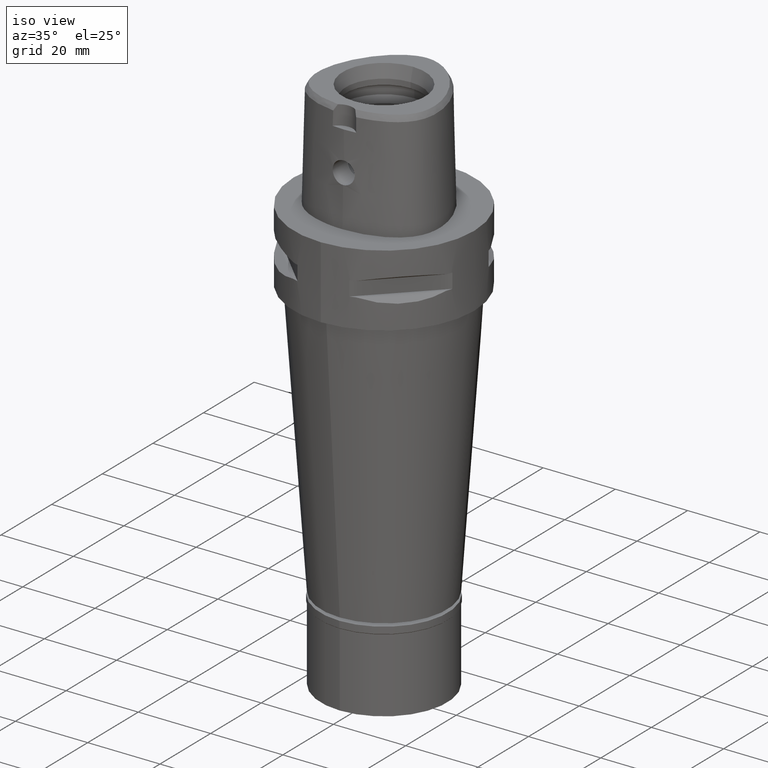
[diagram: clean part render]
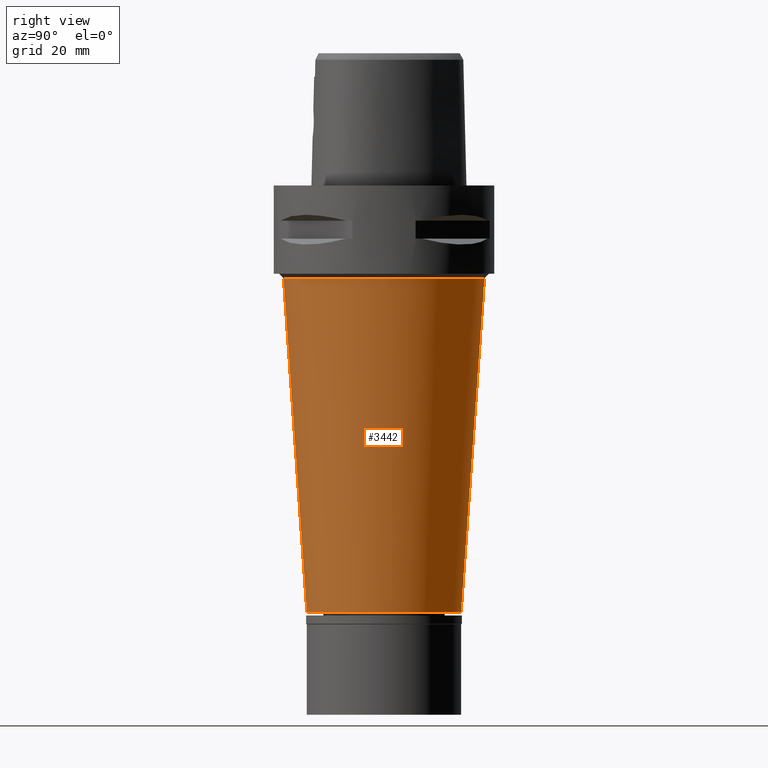
[diagram: tour spotlight — one face highlighted and labeled with its STEP entity id]
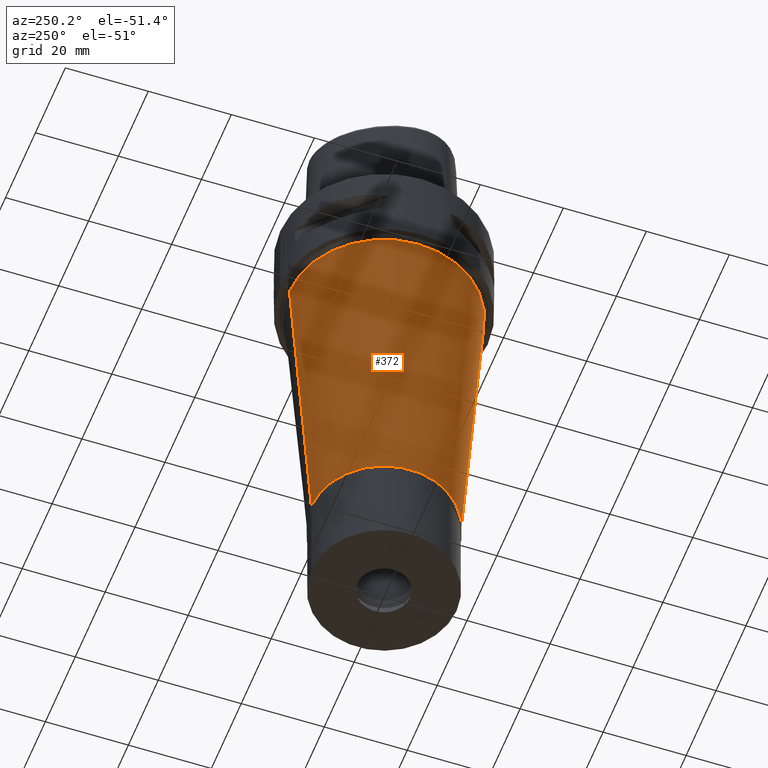
[diagram: tour spotlight — one face highlighted and labeled with its STEP entity id]
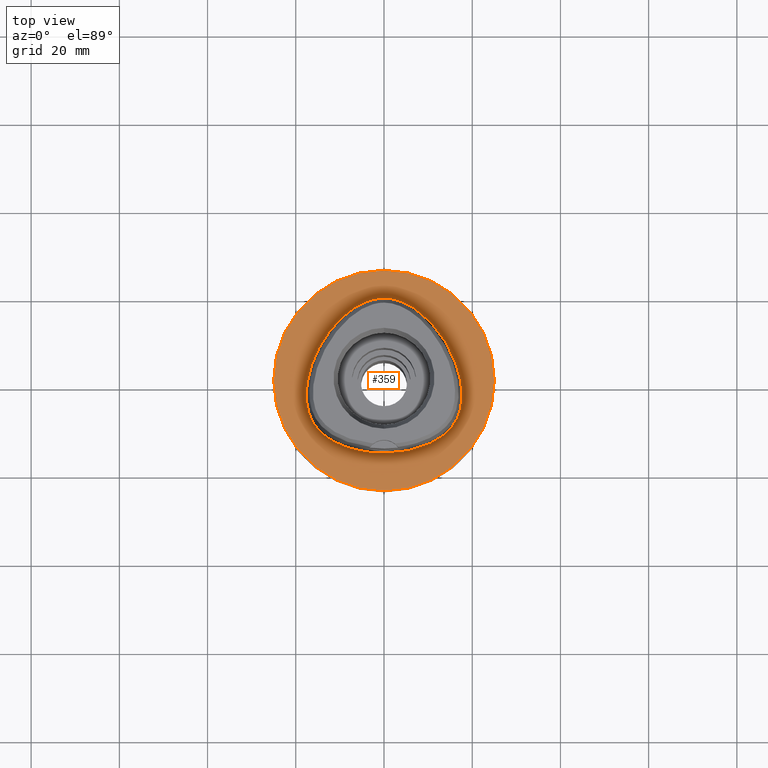
[diagram: tour spotlight — one face highlighted and labeled with its STEP entity id]
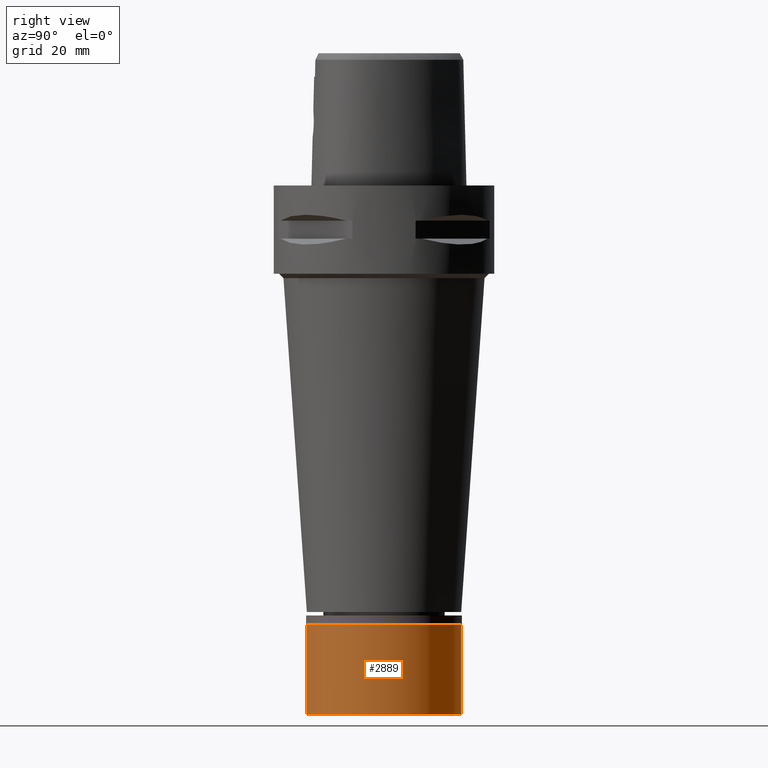
[diagram: tour spotlight — one face highlighted and labeled with its STEP entity id]
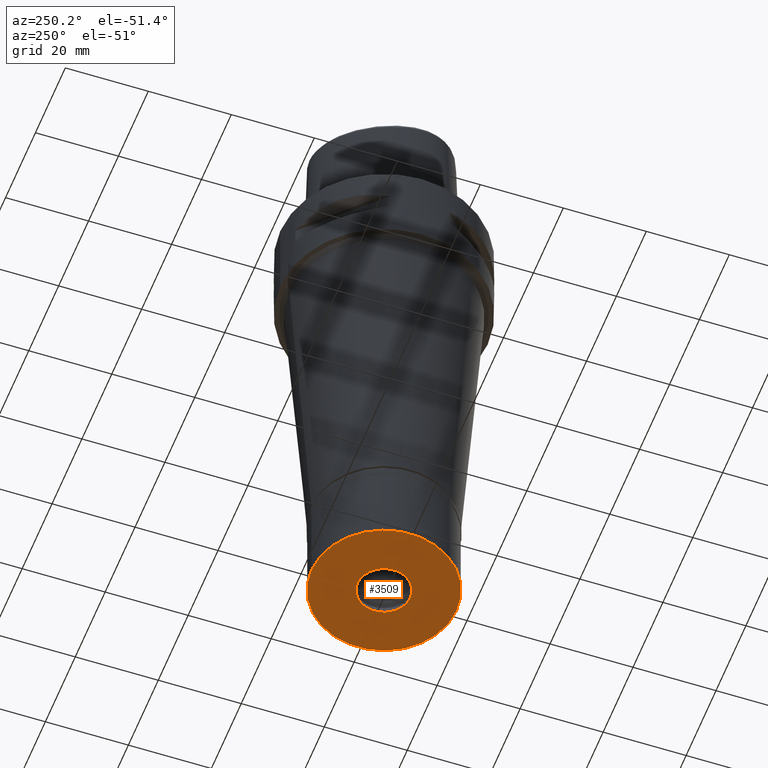
[diagram: tour spotlight — one face highlighted and labeled with its STEP entity id]
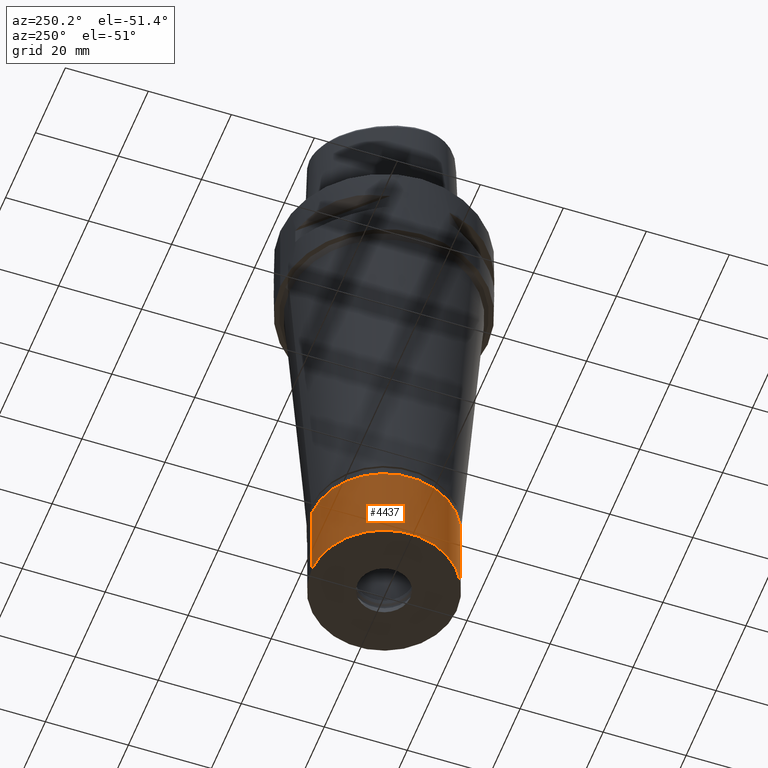
[diagram: tour spotlight — one face highlighted and labeled with its STEP entity id]
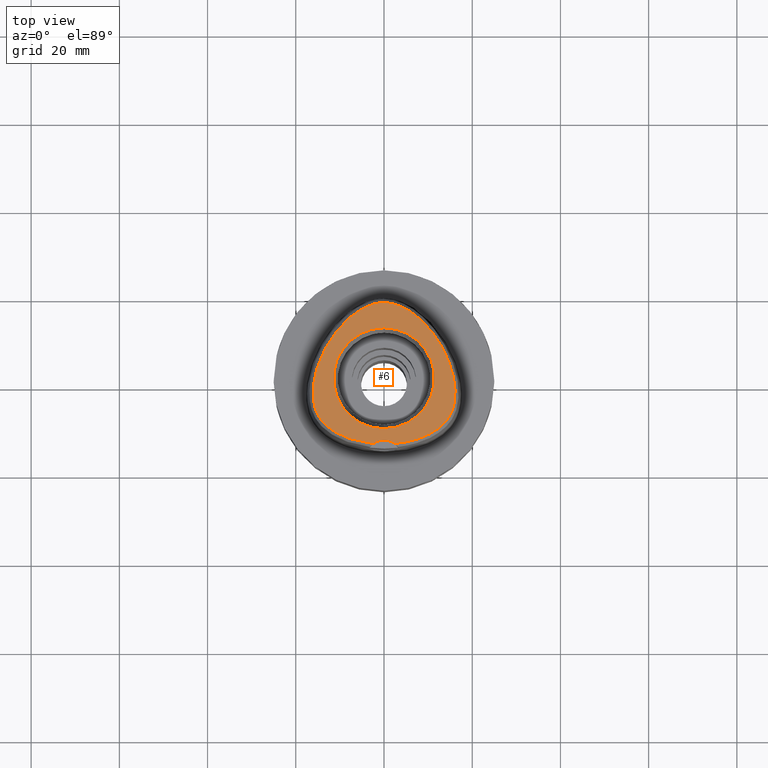
[diagram: tour spotlight — one face highlighted and labeled with its STEP entity id]
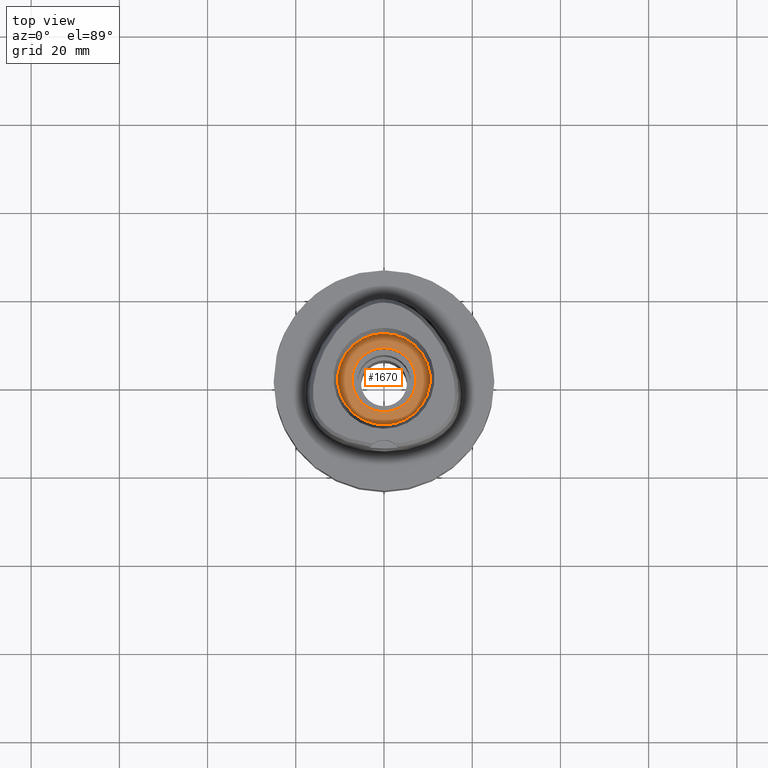
[diagram: tour spotlight — one face highlighted and labeled with its STEP entity id]
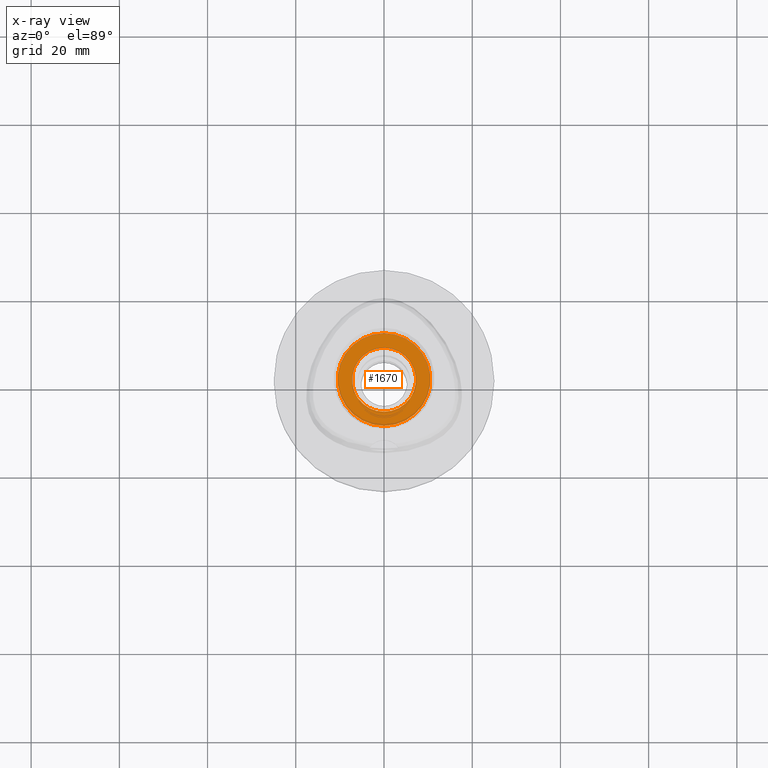
[diagram: x-ray of the same camera — body ghosted, this tour face saturated]
A machine part: a face-by-face anatomy tour. The part has 100 B-rep faces; the first image is the clean iso view, then the 8 largest visible faces are spotlighted one at a time (largest first), each with its STEP entity span.

Face 1 — right view, entity #3442. In plain terms, the highlighted conical surface has half-angle 4 deg.
Definition (entity closure, byte-faithful):
#53 = VERTEX_POINT ( 'NONE', #3739 ) ;
#273 = DIRECTION ( 'NONE',  ( 0.0000000000000000000, 1.000000000000000000, 0.0000000000000000000 ) ) ;
#334 = VECTOR ( 'NONE', #3216, 999.9999999999998863 ) ;
#556 = DIRECTION ( 'NONE',  ( 0.0000000000000000000, -1.000000000000000000, 0.0000000000000000000 ) ) ;
#621 = ORIENTED_EDGE ( 'NONE', *, *, #3413, .T. ) ;
#960 = CARTESIAN_POINT ( 'NONE',  ( 0.0000000000000000000, 17.50000000000000000, -96.69999999999998863 ) ) ;
#1284 = CARTESIAN_POINT ( 'NONE',  ( 0.0000000000000000000, 0.0000000000000000000, -21.00000000000000000 ) ) ;
#1690 = ORIENTED_EDGE ( 'NONE', *, *, #2455, .F. ) ;
#1957 = AXIS2_PLACEMENT_3D ( 'NONE', #1284, #2811, #556 ) ;
#2083 = AXIS2_PLACEMENT_3D ( 'NONE', #4408, #2926, #2132 ) ;
#2125 = CARTESIAN_POINT ( 'NONE',  ( 0.0000000000000000000, 22.79345966412000024, -21.00000000000000000 ) ) ;
#2132 = DIRECTION ( 'NONE',  ( 0.0000000000000000000, -1.000000000000000000, 0.0000000000000000000 ) ) ;
#2455 = EDGE_CURVE ( 'NONE', #2828, #3802, #4832, .T. ) ;
#2524 = DIRECTION ( 'NONE',  ( 0.0000000000000000000, 0.0000000000000000000, 1.000000000000000000 ) ) ;
#2709 = CONICAL_SURFACE ( 'NONE', #3588, 20.14672983206000367, 0.06981317007975955391 ) ;
#2738 = EDGE_CURVE ( 'NONE', #2828, #53, #3504, .T. ) ;
#2811 = DIRECTION ( 'NONE',  ( 0.0000000000000000000, 0.0000000000000000000, 1.000000000000000000 ) ) ;
#2825 = CARTESIAN_POINT ( 'NONE',  ( 0.0000000000000000000, 0.0000000000000000000, -58.85000000000000142 ) ) ;
#2828 = VERTEX_POINT ( 'NONE', #3537 ) ;
#2926 = DIRECTION ( 'NONE',  ( 0.0000000000000000000, 0.0000000000000000000, 1.000000000000000000 ) ) ;
#2964 = CIRCLE ( 'NONE', #2083, 17.50000000000000000 ) ;
#3216 = DIRECTION ( 'NONE',  ( 0.0000000000000000000, -0.06975647374410180734, -0.9975640502598259740 ) ) ;
#3371 = EDGE_LOOP ( 'NONE', ( #1690, #3714, #621, #3654 ) ) ;
#3413 = EDGE_CURVE ( 'NONE', #53, #3476, #2964, .T. ) ;
#3442 = ADVANCED_FACE ( 'NONE', ( #4855 ), #2709, .T. ) ;
#3476 = VERTEX_POINT ( 'NONE', #960 ) ;
#3504 = LINE ( 'NONE', #3528, #3717 ) ;
#3528 = CARTESIAN_POINT ( 'NONE',  ( 0.0000000000000000000, -22.79345966412000024, -21.00000000000000000 ) ) ;
#3537 = CARTESIAN_POINT ( 'NONE',  ( 0.0000000000000000000, -22.79345966412000024, -21.00000000000000000 ) ) ;
#3588 = AXIS2_PLACEMENT_3D ( 'NONE', #2825, #2524, #273 ) ;
#3654 = ORIENTED_EDGE ( 'NONE', *, *, #4816, .F. ) ;
#3714 = ORIENTED_EDGE ( 'NONE', *, *, #2738, .T. ) ;
#3717 = VECTOR ( 'NONE', #4285, 999.9999999999998863 ) ;
#3739 = CARTESIAN_POINT ( 'NONE',  ( 0.0000000000000000000, -17.50000000000000000, -96.69999999999998863 ) ) ;
#3802 = VERTEX_POINT ( 'NONE', #2125 ) ;
#3962 = LINE ( 'NONE', #4036, #334 ) ;
#4036 = CARTESIAN_POINT ( 'NONE',  ( 0.0000000000000000000, 22.79345966412000024, -21.00000000000000000 ) ) ;
#4285 = DIRECTION ( 'NONE',  ( 0.0000000000000000000, 0.06975647374410180734, -0.9975640502598259740 ) ) ;
#4408 = CARTESIAN_POINT ( 'NONE',  ( 0.0000000000000000000, 0.0000000000000000000, -96.69999999999998863 ) ) ;
#4816 = EDGE_CURVE ( 'NONE', #3802, #3476, #3962, .T. ) ;
#4832 = CIRCLE ( 'NONE', #1957, 22.79345966412000024 ) ;
#4855 = FACE_OUTER_BOUND ( 'NONE', #3371, .T. ) ;

Face 2 — auxiliary view, entity #372. In plain terms, the highlighted conical surface has half-angle 4 deg.
Definition (entity closure, byte-faithful):
#41 = ORIENTED_EDGE ( 'NONE', *, *, #3017, .T. ) ;
#53 = VERTEX_POINT ( 'NONE', #3739 ) ;
#126 = EDGE_CURVE ( 'NONE', #2828, #3802, #654, .T. ) ;
#186 = CIRCLE ( 'NONE', #1195, 17.50000000000000000 ) ;
#334 = VECTOR ( 'NONE', #3216, 999.9999999999998863 ) ;
#372 = ADVANCED_FACE ( 'NONE', ( #3555 ), #412, .T. ) ;
#412 = CONICAL_SURFACE ( 'NONE', #3214, 20.14672983206000367, 0.06981317007975955391 ) ;
#654 = CIRCLE ( 'NONE', #1626, 22.79345966412000024 ) ;
#678 = CARTESIAN_POINT ( 'NONE',  ( 0.0000000000000000000, 0.0000000000000000000, -21.00000000000000000 ) ) ;
#960 = CARTESIAN_POINT ( 'NONE',  ( 0.0000000000000000000, 17.50000000000000000, -96.69999999999998863 ) ) ;
#1119 = DIRECTION ( 'NONE',  ( 0.0000000000000000000, 1.000000000000000000, 0.0000000000000000000 ) ) ;
#1195 = AXIS2_PLACEMENT_3D ( 'NONE', #3410, #3094, #1119 ) ;
#1221 = DIRECTION ( 'NONE',  ( 0.0000000000000000000, 0.0000000000000000000, 1.000000000000000000 ) ) ;
#1488 = ORIENTED_EDGE ( 'NONE', *, *, #2738, .F. ) ;
#1626 = AXIS2_PLACEMENT_3D ( 'NONE', #678, #3067, #4587 ) ;
#2125 = CARTESIAN_POINT ( 'NONE',  ( 0.0000000000000000000, 22.79345966412000024, -21.00000000000000000 ) ) ;
#2738 = EDGE_CURVE ( 'NONE', #2828, #53, #3504, .T. ) ;
#2753 = DIRECTION ( 'NONE',  ( 0.0000000000000000000, 1.000000000000000000, 0.0000000000000000000 ) ) ;
#2828 = VERTEX_POINT ( 'NONE', #3537 ) ;
#3017 = EDGE_CURVE ( 'NONE', #3476, #53, #186, .T. ) ;
#3067 = DIRECTION ( 'NONE',  ( 0.0000000000000000000, 0.0000000000000000000, -1.000000000000000000 ) ) ;
#3094 = DIRECTION ( 'NONE',  ( 0.0000000000000000000, 0.0000000000000000000, 1.000000000000000000 ) ) ;
#3140 = CARTESIAN_POINT ( 'NONE',  ( 0.0000000000000000000, 0.0000000000000000000, -58.85000000000000142 ) ) ;
#3214 = AXIS2_PLACEMENT_3D ( 'NONE', #3140, #1221, #2753 ) ;
#3216 = DIRECTION ( 'NONE',  ( 0.0000000000000000000, -0.06975647374410180734, -0.9975640502598259740 ) ) ;
#3410 = CARTESIAN_POINT ( 'NONE',  ( 0.0000000000000000000, 0.0000000000000000000, -96.69999999999998863 ) ) ;
#3476 = VERTEX_POINT ( 'NONE', #960 ) ;
#3504 = LINE ( 'NONE', #3528, #3717 ) ;
#3528 = CARTESIAN_POINT ( 'NONE',  ( 0.0000000000000000000, -22.79345966412000024, -21.00000000000000000 ) ) ;
#3536 = EDGE_LOOP ( 'NONE', ( #41, #1488, #4253, #4714 ) ) ;
#3537 = CARTESIAN_POINT ( 'NONE',  ( 0.0000000000000000000, -22.79345966412000024, -21.00000000000000000 ) ) ;
#3555 = FACE_OUTER_BOUND ( 'NONE', #3536, .T. ) ;
#3717 = VECTOR ( 'NONE', #4285, 999.9999999999998863 ) ;
#3739 = CARTESIAN_POINT ( 'NONE',  ( 0.0000000000000000000, -17.50000000000000000, -96.69999999999998863 ) ) ;
#3802 = VERTEX_POINT ( 'NONE', #2125 ) ;
#3962 = LINE ( 'NONE', #4036, #334 ) ;
#4036 = CARTESIAN_POINT ( 'NONE',  ( 0.0000000000000000000, 22.79345966412000024, -21.00000000000000000 ) ) ;
#4253 = ORIENTED_EDGE ( 'NONE', *, *, #126, .T. ) ;
#4285 = DIRECTION ( 'NONE',  ( 0.0000000000000000000, 0.06975647374410180734, -0.9975640502598259740 ) ) ;
#4587 = DIRECTION ( 'NONE',  ( 0.0000000000000000000, -1.000000000000000000, 0.0000000000000000000 ) ) ;
#4714 = ORIENTED_EDGE ( 'NONE', *, *, #4816, .T. ) ;
#4816 = EDGE_CURVE ( 'NONE', #3802, #3476, #3962, .T. ) ;

Face 3 — top view, entity #359. In plain terms, the highlighted planar face has unit normal (0, 0, -1).
Definition (entity closure, byte-faithful):
#13 = EDGE_CURVE ( 'NONE', #4450, #1569, #4097, .T. ) ;
#109 = CIRCLE ( 'NONE', #586, 25.00000000000000000 ) ;
#118 = FACE_BOUND ( 'NONE', #2191, .T. ) ;
#136 = CARTESIAN_POINT ( 'NONE',  ( -11.46563507465623033, 12.45218749529545832, 2.902634408600678756E-07 ) ) ;
#234 = CARTESIAN_POINT ( 'NONE',  ( -7.967839659705319377, 15.83070311923739659, 2.902634408600678756E-07 ) ) ;
#236 = B_SPLINE_CURVE_WITH_KNOTS ( 'NONE', 3,
 ( #1367, #2101, #2468, #4044, #234, #136, #4828, #1777, #3300, #2518, #534, #2075, #3275, #3573, #1730, #1752, #3623, #3251, #4352, #4074, #1396, #1705 ),
 .UNSPECIFIED., .F., .F.,
 ( 4, 1, 1, 1, 1, 1, 1, 1, 1, 1, 1, 1, 1, 1, 1, 1, 1, 1, 1, 4 ),
 ( 0.0000000000000000000, 0.04166666666800000057, 0.08333333333460000991, 0.1666666666679000042, 0.2500000000011000090, 0.3333333333342000104, 0.4166666666675000186, 0.5000000000006999956, 0.5416666666674000430, 0.5833333333339000282, 0.6250000000005999645, 0.6458333333337999971, 0.6666666666671999808, 0.6875000000005000445, 0.7083333333337999971, 0.7500000000004000134, 0.7916666666671000607, 0.8333333333336000459, 0.9166666666668999985, 1.000000000000000000 ),
 .UNSPECIFIED. ) ;
#240 = CARTESIAN_POINT ( 'NONE',  ( 7.967839664225208729, 15.83070312499480714, 1.635247926651262063E-13 ) ) ;
#350 = CARTESIAN_POINT ( 'NONE',  ( 0.0000000000000000000, 1.294023040318999806E-14, 0.0000000000000000000 ) ) ;
#359 = ADVANCED_FACE ( 'NONE', ( #2403, #118 ), #3884, .F. ) ;
#448 = DIRECTION ( 'NONE',  ( 0.0000000000000000000, -1.000000000000000000, 0.0000000000000000000 ) ) ;
#534 = CARTESIAN_POINT ( 'NONE',  ( -17.56373942211470052, -5.455996092717230184, 2.902634408600678756E-07 ) ) ;
#570 = EDGE_CURVE ( 'NONE', #3222, #4933, #1365, .T. ) ;
#586 = AXIS2_PLACEMENT_3D ( 'NONE', #3562, #1665, #4694 ) ;
#645 = CARTESIAN_POINT ( 'NONE',  ( 4.728927206815285444, 17.73480468749460925, 1.635247926651262063E-13 ) ) ;
#735 = EDGE_LOOP ( 'NONE', ( #3726, #1740 ) ) ;
#931 = CARTESIAN_POINT ( 'NONE',  ( 17.71143735561807731, -3.269218750000115747, 1.635247926651262063E-13 ) ) ;
#959 = CARTESIAN_POINT ( 'NONE',  ( 17.49754712306940618, -0.2285937499999662892, 1.635247926651262063E-13 ) ) ;
#1294 = CARTESIAN_POINT ( 'NONE',  ( 16.66912842140230921, -8.445800781249749534, 1.635247926651262063E-13 ) ) ;
#1341 = CARTESIAN_POINT ( 'NONE',  ( -1.591572851427000094E-11, -16.45500000000000185, 1.608343088339999949E-13 ) ) ;
#1365 = B_SPLINE_CURVE_WITH_KNOTS ( 'NONE', 3,
 ( #1341, #4082, #2522, #2874, #2080, #2925, #4378, #2183, #4805, #1294, #4050, #4407, #931, #959, #2473, #2154, #3678, #240, #645, #1685, #3207, #4733 ),
 .UNSPECIFIED., .F., .F.,
 ( 4, 1, 1, 1, 1, 1, 1, 1, 1, 1, 1, 1, 1, 1, 1, 1, 1, 1, 1, 4 ),
 ( 0.0000000000000000000, 0.08333333333348000305, 0.1666666666667000196, 0.2083333333333000081, 0.2499999999998999967, 0.2916666666666000163, 0.3124999999997999933, 0.3333333333331000015, 0.3541666666665000407, 0.3749999999997999933, 0.4166666666664000096, 0.4583333333330000259, 0.4999999999995999866, 0.5833333333328000192, 0.6666666666660999718, 0.7499999999993000044, 0.8333333333325000369, 0.9166666666657000695, 0.9583333333322999747, 1.000000000000000000 ),
 .UNSPECIFIED. ) ;
#1367 = CARTESIAN_POINT ( 'NONE',  ( 6.766080446176000696E-11, 18.69499999997999851, 1.596870783752999901E-13 ) ) ;
#1396 = CARTESIAN_POINT ( 'NONE',  ( -1.683697722098772553, -16.45499999274726477, 2.902634408600678756E-07 ) ) ;
#1532 = DIRECTION ( 'NONE',  ( 0.0000000000000000000, 0.0000000000000000000, -1.000000000000000000 ) ) ;
#1539 = AXIS2_PLACEMENT_3D ( 'NONE', #1612, #2034, #448 ) ;
#1569 = VERTEX_POINT ( 'NONE', #4757 ) ;
#1594 = CARTESIAN_POINT ( 'NONE',  ( 6.766080446176000696E-11, 18.69499999997999851, 1.596870783752999901E-13 ) ) ;
#1612 = CARTESIAN_POINT ( 'NONE',  ( 0.0000000000000000000, 1.224646799146999965E-14, 0.0000000000000000000 ) ) ;
#1665 = DIRECTION ( 'NONE',  ( 0.0000000000000000000, 0.0000000000000000000, -1.000000000000000000 ) ) ;
#1685 = CARTESIAN_POINT ( 'NONE',  ( 2.040572357696246009, 18.55015624999680313, 1.635247926651262063E-13 ) ) ;
#1705 = CARTESIAN_POINT ( 'NONE',  ( -1.591572851427000094E-11, -16.45500000000000185, 1.608343088339999949E-13 ) ) ;
#1730 = CARTESIAN_POINT ( 'NONE',  ( -15.64884223668260788, -10.21298827697042277, 2.902634408600678756E-07 ) ) ;
#1740 = ORIENTED_EDGE ( 'NONE', *, *, #2789, .F. ) ;
#1752 = CARTESIAN_POINT ( 'NONE',  ( -14.78833379871087850, -11.28232909655144489, 2.902634408600678756E-07 ) ) ;
#1760 = CARTESIAN_POINT ( 'NONE',  ( 0.0000000000000000000, 25.00000000000000000, 0.0000000000000000000 ) ) ;
#1777 = CARTESIAN_POINT ( 'NONE',  ( -16.51672824093293102, 3.703437497522479749, 2.902634408600678756E-07 ) ) ;
#2034 = DIRECTION ( 'NONE',  ( 0.0000000000000000000, 0.0000000000000000000, -1.000000000000000000 ) ) ;
#2075 = CARTESIAN_POINT ( 'NONE',  ( -17.16495051082599232, -7.165908201052948456, 2.902634408600678756E-07 ) ) ;
#2080 = CARTESIAN_POINT ( 'NONE',  ( 11.68694516583672716, -13.70394531249364789, 1.635247926651262063E-13 ) ) ;
#2084 = ORIENTED_EDGE ( 'NONE', *, *, #570, .F. ) ;
#2101 = CARTESIAN_POINT ( 'NONE',  ( -0.6801907853514496116, 18.69499999274968260, 2.902634408600678756E-07 ) ) ;
#2154 = CARTESIAN_POINT ( 'NONE',  ( 14.38008119690037923, 8.302343749999421263, 1.635247926651262063E-13 ) ) ;
#2183 = CARTESIAN_POINT ( 'NONE',  ( 15.64884224256306311, -10.21298828125017799, 1.635247926651262063E-13 ) ) ;
#2191 = EDGE_LOOP ( 'NONE', ( #3310, #2084 ) ) ;
#2403 = FACE_OUTER_BOUND ( 'NONE', #735, .T. ) ;
#2468 = CARTESIAN_POINT ( 'NONE',  ( -2.040572356172971169, 18.55015624285487164, 2.902634408600678756E-07 ) ) ;
#2473 = CARTESIAN_POINT ( 'NONE',  ( 16.51672824780114723, 3.703437499999497007, 1.635247926651262063E-13 ) ) ;
#2518 = CARTESIAN_POINT ( 'NONE',  ( -17.71143734833404437, -3.269218750047608424, 2.902634408600678756E-07 ) ) ;
#2522 = CARTESIAN_POINT ( 'NONE',  ( 5.051093167571108822, -16.15562500000260115, 1.635247926651262063E-13 ) ) ;
#2585 = DIRECTION ( 'NONE',  ( 0.0000000000000000000, 1.000000000000000000, 0.0000000000000000000 ) ) ;
#2789 = EDGE_CURVE ( 'NONE', #1569, #4450, #109, .T. ) ;
#2874 = CARTESIAN_POINT ( 'NONE',  ( 8.946741556184786504, -15.03902343750172577, 1.635247926651262063E-13 ) ) ;
#2925 = CARTESIAN_POINT ( 'NONE',  ( 13.50690093479998488, -12.48264648437769964, 1.635247926651262063E-13 ) ) ;
#2981 = AXIS2_PLACEMENT_3D ( 'NONE', #350, #1532, #2585 ) ;
#3207 = CARTESIAN_POINT ( 'NONE',  ( 0.6801907859383344856, 18.69499999999571571, 1.635247926651262063E-13 ) ) ;
#3222 = VERTEX_POINT ( 'NONE', #4308 ) ;
#3251 = CARTESIAN_POINT ( 'NONE',  ( -11.68694516223571078, -13.70394530617399909, 2.902634408600678756E-07 ) ) ;
#3275 = CARTESIAN_POINT ( 'NONE',  ( -16.66912841474808715, -8.445800778295868838, 2.902634408600678756E-07 ) ) ;
#3300 = CARTESIAN_POINT ( 'NONE',  ( -17.49754711588939315, -0.2285937512740469912, 2.902634408600678756E-07 ) ) ;
#3310 = ORIENTED_EDGE ( 'NONE', *, *, #4645, .F. ) ;
#3562 = CARTESIAN_POINT ( 'NONE',  ( 0.0000000000000000000, 1.294023040318999806E-14, 0.0000000000000000000 ) ) ;
#3573 = CARTESIAN_POINT ( 'NONE',  ( -16.20602471333987893, -9.356552730739435830, 2.902634408600678756E-07 ) ) ;
#3623 = CARTESIAN_POINT ( 'NONE',  ( -13.50690093030188343, -12.48264647864620436, 2.902634408600678756E-07 ) ) ;
#3678 = CARTESIAN_POINT ( 'NONE',  ( 11.46563508023345790, 12.45218750000827512, 1.635247926651262063E-13 ) ) ;
#3726 = ORIENTED_EDGE ( 'NONE', *, *, #13, .F. ) ;
#3884 = PLANE ( 'NONE',  #1539 ) ;
#4044 = CARTESIAN_POINT ( 'NONE',  ( -4.728927203697240067, 17.73480468086512474, 2.902634408600678756E-07 ) ) ;
#4050 = CARTESIAN_POINT ( 'NONE',  ( 17.16495051781134151, -7.165908203125344045, 1.635247926651262063E-13 ) ) ;
#4074 = CARTESIAN_POINT ( 'NONE',  ( -5.051093166287000003, -16.15562499281375963, 2.902634408600678756E-07 ) ) ;
#4082 = CARTESIAN_POINT ( 'NONE',  ( 1.683697722515686168, -16.45499999999913499, 1.635247926651261810E-13 ) ) ;
#4097 = CIRCLE ( 'NONE', #2981, 25.00000000000000000 ) ;
#4308 = CARTESIAN_POINT ( 'NONE',  ( -1.591572851427000094E-11, -16.45500000000000185, 1.608343088339999949E-13 ) ) ;
#4352 = CARTESIAN_POINT ( 'NONE',  ( -8.946741553696162086, -15.03902343064831193, 2.902634408600678756E-07 ) ) ;
#4378 = CARTESIAN_POINT ( 'NONE',  ( 14.78833380399403197, -11.28232910156808444, 1.635247926651262063E-13 ) ) ;
#4407 = CARTESIAN_POINT ( 'NONE',  ( 17.56373942933423749, -5.455996093749595488, 1.635247926651262063E-13 ) ) ;
#4450 = VERTEX_POINT ( 'NONE', #1760 ) ;
#4645 = EDGE_CURVE ( 'NONE', #4933, #3222, #236, .T. ) ;
#4694 = DIRECTION ( 'NONE',  ( 0.0000000000000000000, -1.000000000000000000, 0.0000000000000000000 ) ) ;
#4733 = CARTESIAN_POINT ( 'NONE',  ( 6.766080446176000696E-11, 18.69499999997999851, 1.596870783752999901E-13 ) ) ;
#4757 = CARTESIAN_POINT ( 'NONE',  ( 0.0000000000000000000, -25.00000000000000000, 0.0000000000000000000 ) ) ;
#4805 = CARTESIAN_POINT ( 'NONE',  ( 16.20602471963768565, -9.356552734375284786, 1.635247926651262063E-13 ) ) ;
#4828 = CARTESIAN_POINT ( 'NONE',  ( -14.38008119058220657, 8.302343746353274767, 2.902634408600678756E-07 ) ) ;
#4933 = VERTEX_POINT ( 'NONE', #1594 ) ;

Face 4 — right view, entity #2889. In plain terms, the highlighted cylindrical surface (partial cylindrical patch) has radius 17.5 mm, axis along (0, 0, -1).
Definition (entity closure, byte-faithful):
#22 = VERTEX_POINT ( 'NONE', #2675 ) ;
#56 = DIRECTION ( 'NONE',  ( 0.0000000000000000000, 0.0000000000000000000, -1.000000000000000000 ) ) ;
#265 = DIRECTION ( 'NONE',  ( 0.0000000000000000000, 0.0000000000000000000, -1.000000000000000000 ) ) ;
#426 = VECTOR ( 'NONE', #1525, 1000.000000000000000 ) ;
#773 = VERTEX_POINT ( 'NONE', #4185 ) ;
#797 = DIRECTION ( 'NONE',  ( 0.0000000000000000000, 1.000000000000000000, 0.0000000000000000000 ) ) ;
#842 = CARTESIAN_POINT ( 'NONE',  ( 0.0000000000000000000, 0.0000000000000000000, 0.0000000000000000000 ) ) ;
#956 = VERTEX_POINT ( 'NONE', #2722 ) ;
#1108 = LINE ( 'NONE', #2598, #3043 ) ;
#1281 = AXIS2_PLACEMENT_3D ( 'NONE', #4243, #56, #797 ) ;
#1302 = CIRCLE ( 'NONE', #3628, 17.50000000000000000 ) ;
#1525 = DIRECTION ( 'NONE',  ( 0.0000000000000000000, 0.0000000000000000000, -1.000000000000000000 ) ) ;
#1618 = FACE_OUTER_BOUND ( 'NONE', #1764, .T. ) ;
#1764 = EDGE_LOOP ( 'NONE', ( #1938, #3187, #4325, #3597 ) ) ;
#1938 = ORIENTED_EDGE ( 'NONE', *, *, #4888, .T. ) ;
#2010 = EDGE_CURVE ( 'NONE', #956, #773, #2949, .T. ) ;
#2013 = CIRCLE ( 'NONE', #1281, 17.50000000000000000 ) ;
#2357 = AXIS2_PLACEMENT_3D ( 'NONE', #842, #4290, #2362 ) ;
#2362 = DIRECTION ( 'NONE',  ( 0.0000000000000000000, -1.000000000000000000, 0.0000000000000000000 ) ) ;
#2374 = EDGE_CURVE ( 'NONE', #773, #4004, #1302, .T. ) ;
#2514 = DIRECTION ( 'NONE',  ( 0.0000000000000000000, 0.0000000000000000000, 1.000000000000000000 ) ) ;
#2598 = CARTESIAN_POINT ( 'NONE',  ( 0.0000000000000000000, 17.50000000000000000, -2.000000000000000000 ) ) ;
#2675 = CARTESIAN_POINT ( 'NONE',  ( 0.0000000000000000000, 17.50000000000000000, -2.000000000000000000 ) ) ;
#2722 = CARTESIAN_POINT ( 'NONE',  ( 0.0000000000000000000, -17.50000000000000000, -2.000000000000000000 ) ) ;
#2788 = DIRECTION ( 'NONE',  ( 0.0000000000000000000, -1.000000000000000000, 0.0000000000000000000 ) ) ;
#2889 = ADVANCED_FACE ( 'NONE', ( #1618 ), #3147, .T. ) ;
#2949 = LINE ( 'NONE', #4486, #426 ) ;
#3043 = VECTOR ( 'NONE', #265, 1000.000000000000000 ) ;
#3147 = CYLINDRICAL_SURFACE ( 'NONE', #2357, 17.50000000000000000 ) ;
#3187 = ORIENTED_EDGE ( 'NONE', *, *, #2010, .T. ) ;
#3597 = ORIENTED_EDGE ( 'NONE', *, *, #4019, .F. ) ;
#3628 = AXIS2_PLACEMENT_3D ( 'NONE', #4795, #2514, #2788 ) ;
#4004 = VERTEX_POINT ( 'NONE', #4175 ) ;
#4019 = EDGE_CURVE ( 'NONE', #22, #4004, #1108, .T. ) ;
#4175 = CARTESIAN_POINT ( 'NONE',  ( 0.0000000000000000000, 17.50000000000000000, -22.50000000000000000 ) ) ;
#4185 = CARTESIAN_POINT ( 'NONE',  ( 0.0000000000000000000, -17.50000000000000000, -22.50000000000000000 ) ) ;
#4243 = CARTESIAN_POINT ( 'NONE',  ( 0.0000000000000000000, 0.0000000000000000000, -2.000000000000000000 ) ) ;
#4290 = DIRECTION ( 'NONE',  ( 0.0000000000000000000, 0.0000000000000000000, -1.000000000000000000 ) ) ;
#4325 = ORIENTED_EDGE ( 'NONE', *, *, #2374, .T. ) ;
#4486 = CARTESIAN_POINT ( 'NONE',  ( 0.0000000000000000000, -17.50000000000000000, -2.000000000000000000 ) ) ;
#4795 = CARTESIAN_POINT ( 'NONE',  ( 0.0000000000000000000, 0.0000000000000000000, -22.50000000000000000 ) ) ;
#4888 = EDGE_CURVE ( 'NONE', #22, #956, #2013, .T. ) ;

Face 5 — auxiliary view, entity #3509. In plain terms, the highlighted planar face has unit normal (0, 0, -1).
Definition (entity closure, byte-faithful):
#102 = AXIS2_PLACEMENT_3D ( 'NONE', #730, #751, #3819 ) ;
#378 = ORIENTED_EDGE ( 'NONE', *, *, #4801, .F. ) ;
#540 = FACE_OUTER_BOUND ( 'NONE', #4280, .T. ) ;
#552 = DIRECTION ( 'NONE',  ( 0.0000000000000000000, -1.000000000000000000, 0.0000000000000000000 ) ) ;
#697 = DIRECTION ( 'NONE',  ( 0.0000000000000000000, 1.000000000000000000, 0.0000000000000000000 ) ) ;
#730 = CARTESIAN_POINT ( 'NONE',  ( 0.0000000000000000000, 0.0000000000000000000, -22.50000000000000000 ) ) ;
#751 = DIRECTION ( 'NONE',  ( 0.0000000000000000000, 0.0000000000000000000, -1.000000000000000000 ) ) ;
#773 = VERTEX_POINT ( 'NONE', #4185 ) ;
#835 = EDGE_CURVE ( 'NONE', #4004, #773, #3215, .T. ) ;
#853 = EDGE_LOOP ( 'NONE', ( #4592, #378 ) ) ;
#972 = CARTESIAN_POINT ( 'NONE',  ( 0.0000000000000000000, 0.0000000000000000000, -22.50000000000000000 ) ) ;
#1062 = VERTEX_POINT ( 'NONE', #1727 ) ;
#1302 = CIRCLE ( 'NONE', #3628, 17.50000000000000000 ) ;
#1327 = DIRECTION ( 'NONE',  ( 0.0000000000000000000, 0.0000000000000000000, -1.000000000000000000 ) ) ;
#1554 = CIRCLE ( 'NONE', #102, 6.349999999998999556 ) ;
#1698 = AXIS2_PLACEMENT_3D ( 'NONE', #972, #1327, #552 ) ;
#1727 = CARTESIAN_POINT ( 'NONE',  ( 0.0000000000000000000, 6.349999999998999556, -22.50000000000000000 ) ) ;
#1815 = ORIENTED_EDGE ( 'NONE', *, *, #2374, .F. ) ;
#1917 = EDGE_CURVE ( 'NONE', #1062, #3320, #1554, .T. ) ;
#2081 = PLANE ( 'NONE',  #3983 ) ;
#2374 = EDGE_CURVE ( 'NONE', #773, #4004, #1302, .T. ) ;
#2514 = DIRECTION ( 'NONE',  ( 0.0000000000000000000, 0.0000000000000000000, 1.000000000000000000 ) ) ;
#2606 = CARTESIAN_POINT ( 'NONE',  ( 0.0000000000000000000, 0.0000000000000000000, -22.50000000000000000 ) ) ;
#2788 = DIRECTION ( 'NONE',  ( 0.0000000000000000000, -1.000000000000000000, 0.0000000000000000000 ) ) ;
#2847 = DIRECTION ( 'NONE',  ( 0.0000000000000000000, 0.0000000000000000000, -1.000000000000000000 ) ) ;
#2860 = ORIENTED_EDGE ( 'NONE', *, *, #835, .F. ) ;
#3215 = CIRCLE ( 'NONE', #4902, 17.50000000000000000 ) ;
#3234 = DIRECTION ( 'NONE',  ( 0.0000000000000000000, -1.000000000000000000, 0.0000000000000000000 ) ) ;
#3320 = VERTEX_POINT ( 'NONE', #4434 ) ;
#3331 = FACE_BOUND ( 'NONE', #853, .T. ) ;
#3509 = ADVANCED_FACE ( 'NONE', ( #540, #3331 ), #2081, .T. ) ;
#3606 = CARTESIAN_POINT ( 'NONE',  ( 0.0000000000000000000, 0.0000000000000000000, -22.50000000000000000 ) ) ;
#3628 = AXIS2_PLACEMENT_3D ( 'NONE', #4795, #2514, #2788 ) ;
#3819 = DIRECTION ( 'NONE',  ( 0.0000000000000000000, 1.000000000000000000, 0.0000000000000000000 ) ) ;
#3856 = CIRCLE ( 'NONE', #1698, 6.349999999998999556 ) ;
#3983 = AXIS2_PLACEMENT_3D ( 'NONE', #3606, #2847, #3234 ) ;
#4004 = VERTEX_POINT ( 'NONE', #4175 ) ;
#4135 = DIRECTION ( 'NONE',  ( 0.0000000000000000000, 0.0000000000000000000, 1.000000000000000000 ) ) ;
#4175 = CARTESIAN_POINT ( 'NONE',  ( 0.0000000000000000000, 17.50000000000000000, -22.50000000000000000 ) ) ;
#4185 = CARTESIAN_POINT ( 'NONE',  ( 0.0000000000000000000, -17.50000000000000000, -22.50000000000000000 ) ) ;
#4280 = EDGE_LOOP ( 'NONE', ( #2860, #1815 ) ) ;
#4434 = CARTESIAN_POINT ( 'NONE',  ( 0.0000000000000000000, -6.349999999998999556, -22.50000000000000000 ) ) ;
#4592 = ORIENTED_EDGE ( 'NONE', *, *, #1917, .F. ) ;
#4795 = CARTESIAN_POINT ( 'NONE',  ( 0.0000000000000000000, 0.0000000000000000000, -22.50000000000000000 ) ) ;
#4801 = EDGE_CURVE ( 'NONE', #3320, #1062, #3856, .T. ) ;
#4902 = AXIS2_PLACEMENT_3D ( 'NONE', #2606, #4135, #697 ) ;

Face 6 — auxiliary view, entity #4437. In plain terms, the highlighted cylindrical surface (partial cylindrical patch) has radius 17.5 mm, axis along (0, 0, -1).
Definition (entity closure, byte-faithful):
#22 = VERTEX_POINT ( 'NONE', #2675 ) ;
#265 = DIRECTION ( 'NONE',  ( 0.0000000000000000000, 0.0000000000000000000, -1.000000000000000000 ) ) ;
#426 = VECTOR ( 'NONE', #1525, 1000.000000000000000 ) ;
#697 = DIRECTION ( 'NONE',  ( 0.0000000000000000000, 1.000000000000000000, 0.0000000000000000000 ) ) ;
#773 = VERTEX_POINT ( 'NONE', #4185 ) ;
#835 = EDGE_CURVE ( 'NONE', #4004, #773, #3215, .T. ) ;
#956 = VERTEX_POINT ( 'NONE', #2722 ) ;
#1108 = LINE ( 'NONE', #2598, #3043 ) ;
#1375 = CARTESIAN_POINT ( 'NONE',  ( 0.0000000000000000000, 0.0000000000000000000, 0.0000000000000000000 ) ) ;
#1446 = EDGE_LOOP ( 'NONE', ( #3374, #2813, #3285, #2279 ) ) ;
#1525 = DIRECTION ( 'NONE',  ( 0.0000000000000000000, 0.0000000000000000000, -1.000000000000000000 ) ) ;
#2010 = EDGE_CURVE ( 'NONE', #956, #773, #2949, .T. ) ;
#2279 = ORIENTED_EDGE ( 'NONE', *, *, #4019, .T. ) ;
#2335 = AXIS2_PLACEMENT_3D ( 'NONE', #1375, #2552, #2848 ) ;
#2510 = AXIS2_PLACEMENT_3D ( 'NONE', #4267, #3211, #4716 ) ;
#2552 = DIRECTION ( 'NONE',  ( 0.0000000000000000000, 0.0000000000000000000, -1.000000000000000000 ) ) ;
#2598 = CARTESIAN_POINT ( 'NONE',  ( 0.0000000000000000000, 17.50000000000000000, -2.000000000000000000 ) ) ;
#2606 = CARTESIAN_POINT ( 'NONE',  ( 0.0000000000000000000, 0.0000000000000000000, -22.50000000000000000 ) ) ;
#2675 = CARTESIAN_POINT ( 'NONE',  ( 0.0000000000000000000, 17.50000000000000000, -2.000000000000000000 ) ) ;
#2722 = CARTESIAN_POINT ( 'NONE',  ( 0.0000000000000000000, -17.50000000000000000, -2.000000000000000000 ) ) ;
#2799 = EDGE_CURVE ( 'NONE', #956, #22, #3632, .T. ) ;
#2813 = ORIENTED_EDGE ( 'NONE', *, *, #2010, .F. ) ;
#2848 = DIRECTION ( 'NONE',  ( 0.0000000000000000000, -1.000000000000000000, 0.0000000000000000000 ) ) ;
#2949 = LINE ( 'NONE', #4486, #426 ) ;
#2955 = FACE_OUTER_BOUND ( 'NONE', #1446, .T. ) ;
#3043 = VECTOR ( 'NONE', #265, 1000.000000000000000 ) ;
#3211 = DIRECTION ( 'NONE',  ( 0.0000000000000000000, 0.0000000000000000000, -1.000000000000000000 ) ) ;
#3215 = CIRCLE ( 'NONE', #4902, 17.50000000000000000 ) ;
#3281 = CYLINDRICAL_SURFACE ( 'NONE', #2335, 17.50000000000000000 ) ;
#3285 = ORIENTED_EDGE ( 'NONE', *, *, #2799, .T. ) ;
#3374 = ORIENTED_EDGE ( 'NONE', *, *, #835, .T. ) ;
#3632 = CIRCLE ( 'NONE', #2510, 17.50000000000000000 ) ;
#4004 = VERTEX_POINT ( 'NONE', #4175 ) ;
#4019 = EDGE_CURVE ( 'NONE', #22, #4004, #1108, .T. ) ;
#4135 = DIRECTION ( 'NONE',  ( 0.0000000000000000000, 0.0000000000000000000, 1.000000000000000000 ) ) ;
#4175 = CARTESIAN_POINT ( 'NONE',  ( 0.0000000000000000000, 17.50000000000000000, -22.50000000000000000 ) ) ;
#4185 = CARTESIAN_POINT ( 'NONE',  ( 0.0000000000000000000, -17.50000000000000000, -22.50000000000000000 ) ) ;
#4267 = CARTESIAN_POINT ( 'NONE',  ( 0.0000000000000000000, 0.0000000000000000000, -2.000000000000000000 ) ) ;
#4437 = ADVANCED_FACE ( 'NONE', ( #2955 ), #3281, .T. ) ;
#4486 = CARTESIAN_POINT ( 'NONE',  ( 0.0000000000000000000, -17.50000000000000000, -2.000000000000000000 ) ) ;
#4716 = DIRECTION ( 'NONE',  ( 0.0000000000000000000, -1.000000000000000000, 0.0000000000000000000 ) ) ;
#4902 = AXIS2_PLACEMENT_3D ( 'NONE', #2606, #4135, #697 ) ;

Face 7 — top view, entity #6. In plain terms, the highlighted planar face has unit normal (0, 0, 1).
Definition (entity closure, byte-faithful):
#6 = ADVANCED_FACE ( 'NONE', ( #3012, #1862 ), #4538, .T. ) ;
#14 = CARTESIAN_POINT ( 'NONE',  ( 10.60500548643990371, -12.49469941440142229, 29.99999999999693756 ) ) ;
#39 = CARTESIAN_POINT ( 'NONE',  ( 5.446614459518014151, -14.35518554873214647, 29.99999999999748113 ) ) ;
#61 = CARTESIAN_POINT ( 'NONE',  ( 3.078265684544440717, 16.60532678263212958, 29.99999999999433697 ) ) ;
#84 = CARTESIAN_POINT ( 'NONE',  ( 11.36765809995683796, -12.04801986072957121, 30.00000000000084555 ) ) ;
#107 = CARTESIAN_POINT ( 'NONE',  ( 2.538962679605383688, -14.79292722369550539, 30.00000000000048317 ) ) ;
#134 = CARTESIAN_POINT ( 'NONE',  ( -13.18915979441498010, -10.65722997876661893, 30.00000000000300560 ) ) ;
#338 = CARTESIAN_POINT ( 'NONE',  ( -16.12543283908568270, -3.535877041748258343, 30.00000000000216716 ) ) ;
#386 = CARTESIAN_POINT ( 'NONE',  ( 14.76450668990989890, -8.742560395150755781, 29.99999999999949196 ) ) ;
#413 = CARTESIAN_POINT ( 'NONE',  ( 16.08569500455550028, -4.373922630229371222, 29.99999999999598188 ) ) ;
#438 = CARTESIAN_POINT ( 'NONE',  ( 16.11273027396916646, -2.627494158581356487, 30.00000000000093436 ) ) ;
#458 = CARTESIAN_POINT ( 'NONE',  ( 14.44767169633164450, -9.224476417586377153, 29.99999999999617017 ) ) ;
#481 = CARTESIAN_POINT ( 'NONE',  ( 1.774127352511324363, 16.97169788998856177, 29.99999999999762679 ) ) ;
#499 = VERTEX_POINT ( 'NONE', #1736 ) ;
#512 = CARTESIAN_POINT ( 'NONE',  ( -8.809985523416104414, -13.33678107331211038, 30.00000000000050093 ) ) ;
#558 = CARTESIAN_POINT ( 'NONE',  ( -15.29229544369395022, -7.721097396977294913, 29.99999999999280220 ) ) ;
#689 = CARTESIAN_POINT ( 'NONE',  ( -15.02099409650743134, 2.867135356160664728, 29.99999999999567279 ) ) ;
#714 = CARTESIAN_POINT ( 'NONE',  ( -14.55898035934633761, 4.112421202110880358, 29.99999999999424460 ) ) ;
#745 = CARTESIAN_POINT ( 'NONE',  ( 0.0000000000000000000, 0.0000000000000000000, 30.00000000000000000 ) ) ;
#754 = CARTESIAN_POINT ( 'NONE',  ( 14.01089202938977074, 5.377385268371846827, 29.99999999999472067 ) ) ;
#758 = CARTESIAN_POINT ( 'NONE',  ( 0.0000000000000000000, 1.570609519905999910E-14, 30.00000000000000000 ) ) ;
#764 = VERTEX_POINT ( 'NONE', #1832 ) ;
#766 = B_SPLINE_CURVE_WITH_KNOTS ( 'NONE', 3,
 ( #3946, #4020, #4751, #1749, #3223, #4349, #2838, #512, #1310, #2049, #923, #2464, #3272, #134, #3992, #1678, #4797, #3199, #4726, #558, #3620, #1286, #2892, #978, #3345, #338, #2619, #1800, #3399, #2641, #3002, #689, #714, #4151, #1445, #4528, #1472, #2538, #2971, #1873, #4847, #4901, #2568, #2942, #4504, #1518, #4476, #4071, #1415, #4100, #3751, #1001, #1063, #4451 ),
 .UNSPECIFIED., .F., .F.,
 ( 4, 1, 1, 1, 1, 1, 1, 1, 1, 1, 1, 1, 1, 1, 1, 1, 1, 1, 1, 1, 1, 1, 1, 1, 1, 1, 1, 1, 1, 1, 1, 1, 1, 1, 1, 1, 1, 1, 1, 1, 1, 1, 1, 1, 1, 1, 1, 1, 1, 1, 1, 4 ),
 ( 0.0000000000000000000, 0.005566907331700066131, 0.02545556918509994659, 0.04534423103860008020, 0.06523289289190004059, 0.08512155474529992105, 0.1050102165987000236, 0.1248988784521999351, 0.1447875403055000065, 0.1646762021588999980, 0.1845648640122999895, 0.2044535258655999499, 0.2243421877191000835, 0.2442308495724999640, 0.2641195114257999244, 0.2840081732792000269, 0.3038968351325999073, 0.3237854969860000098, 0.3436741588394000013, 0.3635628206927999928, 0.3834514825461999843, 0.4033401443995000557, 0.4232288062529999673, 0.4431174681064000698, 0.4630061299597000302, 0.4828947918130999106, 0.5027834536666000442, 0.5226721155199000046, 0.5425607773732999961, 0.5624494392267000986, 0.5823381010799999480, 0.6022267629334999706, 0.6221154247869000731, 0.6420040866403000646, 0.6618927484936000250, 0.6817814103470000164, 0.7016700722005000390, 0.7215587340537999994, 0.7414473959071999909, 0.7613360577605999824, 0.7812247196139999739, 0.8011133814673999654, 0.8210020433207999568, 0.8408907051741000283, 0.8607793670275000197, 0.8806680288810000423, 0.9005566907343299787, 0.9204453525877199782, 0.9403340144411099777, 0.9602226762944999772, 0.9801113381478899766, 1.000000000000000000 ),
 .UNSPECIFIED. ) ;
#826 = CARTESIAN_POINT ( 'NONE',  ( 15.87349190488664163, -5.869792298897919203, 29.99999999999695532 ) ) ;
#848 = CARTESIAN_POINT ( 'NONE',  ( 15.29323375805149610, -7.718923543003611165, 29.99999999999563371 ) ) ;
#911 = DIRECTION ( 'NONE',  ( 0.0000000000000000000, 1.000000000000000000, 0.0000000000000000000 ) ) ;
#923 = CARTESIAN_POINT ( 'NONE',  ( -11.36350786442183214, -12.05063008428340510, 29.99999999999580780 ) ) ;
#978 = CARTESIAN_POINT ( 'NONE',  ( -15.99949242929648463, -5.153835065648535441, 30.00000000000461498 ) ) ;
#980 = AXIS2_PLACEMENT_3D ( 'NONE', #1391, #3696, #999 ) ;
#999 = DIRECTION ( 'NONE',  ( 0.6016359810410799591, 0.7987703964949736113, 0.0000000000000000000 ) ) ;
#1001 = CARTESIAN_POINT ( 'NONE',  ( -0.5679008307148614154, 17.14013367087316553, 29.99999999999713651 ) ) ;
#1053 = AXIS2_PLACEMENT_3D ( 'NONE', #745, #2654, #1095 ) ;
#1063 = CARTESIAN_POINT ( 'NONE',  ( -0.1909045559979745676, 17.15328888648515360, 29.99999999999984723 ) ) ;
#1095 = DIRECTION ( 'NONE',  ( 1.000000000000000000, 0.0000000000000000000, 0.0000000000000000000 ) ) ;
#1137 = AXIS2_PLACEMENT_3D ( 'NONE', #758, #2352, #1953 ) ;
#1140 = EDGE_CURVE ( 'NONE', #4483, #764, #766, .T. ) ;
#1156 = CARTESIAN_POINT ( 'NONE',  ( 7.783816186093651446, -13.71424622167486085, 30.00000000000672884 ) ) ;
#1180 = CARTESIAN_POINT ( 'NONE',  ( 8.557117433367830373, 13.07415149353402484, 30.00000000000052580 ) ) ;
#1197 = DIRECTION ( 'NONE',  ( 0.0000000000000000000, 0.0000000000000000000, 1.000000000000000000 ) ) ;
#1209 = CARTESIAN_POINT ( 'NONE',  ( 16.04058509949971878, -1.654113685487673679, 30.00000000000149214 ) ) ;
#1234 = CARTESIAN_POINT ( 'NONE',  ( 15.39668103801822596, 1.657188505494731512, 29.99999999999569766 ) ) ;
#1286 = CARTESIAN_POINT ( 'NONE',  ( -15.71065119879044225, -6.536303815288952102, 29.99999999999154809 ) ) ;
#1300 = EDGE_LOOP ( 'NONE', ( #2203, #3198 ) ) ;
#1310 = CARTESIAN_POINT ( 'NONE',  ( -9.750168658359122276, -12.92810664734103021, 30.00000000000341061 ) ) ;
#1349 = CIRCLE ( 'NONE', #3046, 11.43782217350000074 ) ;
#1377 = B_SPLINE_CURVE_WITH_KNOTS ( 'NONE', 3,
 ( #1575, #3874, #3895, #3103, #481, #4699, #61, #4199, #1601, #4623, #4651, #2325, #2686, #1180, #2765, #3127, #4295, #2715, #3848, #3492, #754, #1970, #4249, #1234, #3446, #2742, #1209, #438, #2299, #413, #4275, #826, #1627, #3822, #848, #3153, #386, #458, #3520, #1948, #4223, #3470, #4599, #84, #14, #3172, #4678, #1156, #2390, #39, #3920, #2020, #107, #1650 ),
 .UNSPECIFIED., .F., .F.,
 ( 4, 1, 1, 1, 1, 1, 1, 1, 1, 1, 1, 1, 1, 1, 1, 1, 1, 1, 1, 1, 1, 1, 1, 1, 1, 1, 1, 1, 1, 1, 1, 1, 1, 1, 1, 1, 1, 1, 1, 1, 1, 1, 1, 1, 1, 1, 1, 1, 1, 1, 1, 4 ),
 ( 0.0000000000000000000, 0.01988587058640001182, 0.03977174117009996124, 0.05965761175399997285, 0.07954348233780006439, 0.09942935292160004490, 0.1193152235055000565, 0.1392010940893000370, 0.1590869646731999376, 0.1789728352568999981, 0.1988587058408000097, 0.2187445764247000213, 0.2386304470083999707, 0.2585163175922999823, 0.2784021881761000738, 0.2982880587598999433, 0.3181739293438000660, 0.3380597999276000465, 0.3579456705113999160, 0.3778315410952000075, 0.3977174116791000191, 0.4176032822630000307, 0.4374891528466999802, 0.4573750234305999918, 0.4772608940143999723, 0.4971467645981999528, 0.5170326351820999644, 0.5369185057659000559, 0.5568043763497000365, 0.5766902469335999371, 0.5965761175174000286, 0.6164619881012000091, 0.6363478586849999896, 0.6562337292689000012, 0.6761195998528000128, 0.6960054704364999623, 0.7158913410203999739, 0.7357772116042000654, 0.7556630821880000459, 0.7755489527718999465, 0.7954348233557000381, 0.8153206939395000186, 0.8352065645232999991, 0.8550924351072000107, 0.8749783056909999912, 0.8948641762747999717, 0.9147500468586799993, 0.9346359174424899718, 0.9545217880263200394, 0.9744076586101599879, 0.9942935291939859477, 1.000000000000000000 ),
 .UNSPECIFIED. ) ;
#1391 = CARTESIAN_POINT ( 'NONE',  ( 0.0000000000000000000, -18.00000000000000000, 30.00000000000000000 ) ) ;
#1415 = CARTESIAN_POINT ( 'NONE',  ( -2.411640998825535398, 16.81591728050764445, 29.99999999999352696 ) ) ;
#1445 = CARTESIAN_POINT ( 'NONE',  ( -13.38439869301239682, 6.635703175839481105, 29.99999999999850431 ) ) ;
#1472 = CARTESIAN_POINT ( 'NONE',  ( -11.92713521269140209, 9.060544494662435611, 29.99999999999303668 ) ) ;
#1518 = CARTESIAN_POINT ( 'NONE',  ( -4.498660734198359989, 15.99814720005971225, 29.99999999999687361 ) ) ;
#1575 = CARTESIAN_POINT ( 'NONE',  ( -6.301949014362000499E-11, 17.15328888647999861, 30.00000000000000000 ) ) ;
#1601 = CARTESIAN_POINT ( 'NONE',  ( 4.499552315896360177, 15.99769543814533534, 29.99999999999583977 ) ) ;
#1627 = CARTESIAN_POINT ( 'NONE',  ( 15.71128456931992368, -6.534031654963332159, 30.00000000000304468 ) ) ;
#1650 = CARTESIAN_POINT ( 'NONE',  ( 2.406543924163999648, -14.80491841401999942, 30.00000000000000000 ) ) ;
#1678 = CARTESIAN_POINT ( 'NONE',  ( -14.08052509618156023, -9.706873108417822138, 29.99999999999365485 ) ) ;
#1686 = CARTESIAN_POINT ( 'NONE',  ( 0.0000000000000000000, 11.43782217350000074, 30.00000000000000000 ) ) ;
#1736 = CARTESIAN_POINT ( 'NONE',  ( 2.406543924163999648, -14.80491841401999942, 30.00000000000000000 ) ) ;
#1749 = CARTESIAN_POINT ( 'NONE',  ( -4.150496093831221422, -14.59917355180221676, 30.00000000000014921 ) ) ;
#1800 = CARTESIAN_POINT ( 'NONE',  ( -16.04083576397482958, -1.656498942829153220, 29.99999999999758415 ) ) ;
#1832 = CARTESIAN_POINT ( 'NONE',  ( -6.301949014362000499E-11, 17.15328888647999861, 30.00000000000000000 ) ) ;
#1862 = FACE_BOUND ( 'NONE', #1300, .T. ) ;
#1873 = CARTESIAN_POINT ( 'NONE',  ( -9.420854217683398701, 12.20577134109680451, 29.99999999999550226 ) ) ;
#1948 = CARTESIAN_POINT ( 'NONE',  ( 13.66559393374877907, -10.18115111193803202, 29.99999999999775824 ) ) ;
#1953 = DIRECTION ( 'NONE',  ( 0.0000000000000000000, -1.000000000000000000, 0.0000000000000000000 ) ) ;
#1970 = CARTESIAN_POINT ( 'NONE',  ( 14.55828366953685737, 4.114142377745777068, 29.99999999999815969 ) ) ;
#2002 = ORIENTED_EDGE ( 'NONE', *, *, #2583, .F. ) ;
#2020 = CARTESIAN_POINT ( 'NONE',  ( 3.130495111450915413, -14.73481892791680004, 29.99999999999835509 ) ) ;
#2049 = CARTESIAN_POINT ( 'NONE',  ( -10.60021164902773094, -12.49731984708638421, 29.99999999999457145 ) ) ;
#2156 = EDGE_CURVE ( 'NONE', #3261, #3228, #3792, .T. ) ;
#2203 = ORIENTED_EDGE ( 'NONE', *, *, #2156, .F. ) ;
#2284 = CIRCLE ( 'NONE', #980, 4.000000000000000888 ) ;
#2299 = CARTESIAN_POINT ( 'NONE',  ( 16.12546998862724124, -3.533461825553756874, 30.00000000000324718 ) ) ;
#2325 = CARTESIAN_POINT ( 'NONE',  ( 6.863227115066004025, 14.51498137220704443, 29.99999999999617017 ) ) ;
#2342 = ORIENTED_EDGE ( 'NONE', *, *, #1140, .F. ) ;
#2352 = DIRECTION ( 'NONE',  ( 0.0000000000000000000, 0.0000000000000000000, 1.000000000000000000 ) ) ;
#2359 = CARTESIAN_POINT ( 'NONE',  ( 0.0000000000000000000, -11.43782217350000074, 30.00000000000000000 ) ) ;
#2390 = CARTESIAN_POINT ( 'NONE',  ( 6.658132732489154826, -14.05774790739221558, 29.99999999999625899 ) ) ;
#2464 = CARTESIAN_POINT ( 'NONE',  ( -12.04571048959861024, -11.59259605426917616, 29.99999999999833022 ) ) ;
#2538 = CARTESIAN_POINT ( 'NONE',  ( -11.11900396222796594, 10.19116357425113506, 30.00000000000013500 ) ) ;
#2568 = CARTESIAN_POINT ( 'NONE',  ( -6.862723739079719998, 14.51536572208311959, 29.99999999999890932 ) ) ;
#2583 = EDGE_CURVE ( 'NONE', #499, #4483, #2284, .T. ) ;
#2619 = CARTESIAN_POINT ( 'NONE',  ( -16.11283982316489727, -2.629907404753974554, 29.99999999999617017 ) ) ;
#2641 = CARTESIAN_POINT ( 'NONE',  ( -15.68979199461199237, 0.4896967076515121309, 29.99999999999958078 ) ) ;
#2654 = DIRECTION ( 'NONE',  ( 0.0000000000000000000, 0.0000000000000000000, 1.000000000000000000 ) ) ;
#2686 = CARTESIAN_POINT ( 'NONE',  ( 7.700998872106957549, 13.84384558891611938, 30.00000000000358114 ) ) ;
#2715 = CARTESIAN_POINT ( 'NONE',  ( 11.92667412982482666, 9.061218325783055860, 29.99999999999392131 ) ) ;
#2742 = CARTESIAN_POINT ( 'NONE',  ( 15.90185233182601898, -0.6139199331562580353, 29.99999999999403499 ) ) ;
#2765 = CARTESIAN_POINT ( 'NONE',  ( 9.420872132875045324, 12.20574557692273210, 30.00000000000211386 ) ) ;
#2838 = CARTESIAN_POINT ( 'NONE',  ( -7.776737509122646053, -13.71663015822269749, 29.99999999999758771 ) ) ;
#2892 = CARTESIAN_POINT ( 'NONE',  ( -15.87300767660346601, -5.872112237379162103, 29.99999999999801759 ) ) ;
#2942 = CARTESIAN_POINT ( 'NONE',  ( -6.047371482394870768, 15.09400374235270625, 29.99999999999928946 ) ) ;
#2971 = CARTESIAN_POINT ( 'NONE',  ( -10.27907733182250638, 11.24278573582781959, 29.99999999999191047 ) ) ;
#3002 = CARTESIAN_POINT ( 'NONE',  ( -15.39727819201224790, 1.655076005305748721, 30.00000000000223110 ) ) ;
#3012 = FACE_OUTER_BOUND ( 'NONE', #3352, .T. ) ;
#3046 = AXIS2_PLACEMENT_3D ( 'NONE', #4736, #1197, #911 ) ;
#3103 = CARTESIAN_POINT ( 'NONE',  ( 1.161482229273902878, 17.07843133414912629, 30.00000000000107647 ) ) ;
#3127 = CARTESIAN_POINT ( 'NONE',  ( 10.27891984618176302, 11.24296481357457722, 29.99999999999651124 ) ) ;
#3153 = CARTESIAN_POINT ( 'NONE',  ( 15.04259016984794961, -8.247723288183705037, 30.00000000000348876 ) ) ;
#3172 = CARTESIAN_POINT ( 'NONE',  ( 9.755668685253262140, -12.92551394022802747, 29.99999999999504752 ) ) ;
#3198 = ORIENTED_EDGE ( 'NONE', *, *, #4241, .F. ) ;
#3199 = CARTESIAN_POINT ( 'NONE',  ( -14.76322153899681311, -8.744676018998326583, 29.99999999999945999 ) ) ;
#3223 = CARTESIAN_POINT ( 'NONE',  ( -5.437876102061158790, -14.35707869331224629, 30.00000000000277467 ) ) ;
#3228 = VERTEX_POINT ( 'NONE', #1686 ) ;
#3261 = VERTEX_POINT ( 'NONE', #2359 ) ;
#3272 = CARTESIAN_POINT ( 'NONE',  ( -12.65209017756327015, -11.12734424253392085, 29.99999999999941025 ) ) ;
#3345 = CARTESIAN_POINT ( 'NONE',  ( -16.08550869467089228, -4.376322360225842090, 30.00000000000364508 ) ) ;
#3352 = EDGE_LOOP ( 'NONE', ( #4684, #2342, #2002 ) ) ;
#3399 = CARTESIAN_POINT ( 'NONE',  ( -15.90223487644449385, -0.6162487013688465742, 29.99999999999430500 ) ) ;
#3446 = CARTESIAN_POINT ( 'NONE',  ( 15.68929135224102644, 0.4919393172825415328, 30.00000000000238742 ) ) ;
#3470 = CARTESIAN_POINT ( 'NONE',  ( 12.65514534657087786, -11.12483370674613070, 30.00000000000324718 ) ) ;
#3492 = CARTESIAN_POINT ( 'NONE',  ( 13.38374903490464618, 6.636915464740966719, 30.00000000000525446 ) ) ;
#3520 = CARTESIAN_POINT ( 'NONE',  ( 14.08238499151941880, -9.704590128438999486, 29.99999999999767653 ) ) ;
#3620 = CARTESIAN_POINT ( 'NONE',  ( -15.51623783590863681, -7.150856098906118063, 29.99999999999851852 ) ) ;
#3696 = DIRECTION ( 'NONE',  ( 0.0000000000000000000, 0.0000000000000000000, 1.000000000000000000 ) ) ;
#3751 = CARTESIAN_POINT ( 'NONE',  ( -1.160151454487788003, 17.07862209882918947, 29.99999999999571187 ) ) ;
#3792 = CIRCLE ( 'NONE', #1137, 11.43782217350000074 ) ;
#3822 = CARTESIAN_POINT ( 'NONE',  ( 15.51702143705787229, -7.148634146069560380, 29.99999999999359090 ) ) ;
#3848 = CARTESIAN_POINT ( 'NONE',  ( 12.68590586676785925, 7.870511070826192501, 30.00000000000669331 ) ) ;
#3874 = CARTESIAN_POINT ( 'NONE',  ( 0.1912597614439849047, 17.15328888648415528, 30.00000000000304468 ) ) ;
#3895 = CARTESIAN_POINT ( 'NONE',  ( 0.5691917915717000787, 17.14006060249232988, 30.00000000000598632 ) ) ;
#3920 = CARTESIAN_POINT ( 'NONE',  ( 4.159771979224974103, -14.59766906204215253, 29.99999999999762679 ) ) ;
#3946 = CARTESIAN_POINT ( 'NONE',  ( -2.406542353497000075, -14.80491723099000012, 30.00000000000000000 ) ) ;
#3992 = CARTESIAN_POINT ( 'NONE',  ( -13.66338899148723662, -10.18351204678365640, 29.99999999999783284 ) ) ;
#4020 = CARTESIAN_POINT ( 'NONE',  ( -2.535517866336086001, -14.79323888261984443, 29.99999999999943157 ) ) ;
#4052 = CARTESIAN_POINT ( 'NONE',  ( -2.406542353497000075, -14.80491723099000012, 30.00000000000000000 ) ) ;
#4071 = CARTESIAN_POINT ( 'NONE',  ( -3.077178008231403084, 16.60571267458110967, 30.00000000000219202 ) ) ;
#4100 = CARTESIAN_POINT ( 'NONE',  ( -1.772880577022306392, 16.97196055716062091, 29.99999999999816325 ) ) ;
#4151 = CARTESIAN_POINT ( 'NONE',  ( -14.01158736113277570, 5.375902008631120665, 29.99999999999611688 ) ) ;
#4199 = CARTESIAN_POINT ( 'NONE',  ( 3.772905803808235259, 16.33508552418868476, 30.00000000000615685 ) ) ;
#4223 = CARTESIAN_POINT ( 'NONE',  ( 13.19176257967112242, -10.65479018522886712, 30.00000000000240163 ) ) ;
#4241 = EDGE_CURVE ( 'NONE', #3228, #3261, #1349, .T. ) ;
#4249 = CARTESIAN_POINT ( 'NONE',  ( 15.02033012161646219, 2.869071121502365429, 30.00000000000300204 ) ) ;
#4275 = CARTESIAN_POINT ( 'NONE',  ( 15.99982784346169318, -5.151471542954838334, 29.99999999999811351 ) ) ;
#4295 = CARTESIAN_POINT ( 'NONE',  ( 11.11868440496477639, 10.19157821280798082, 29.99999999999878852 ) ) ;
#4349 = CARTESIAN_POINT ( 'NONE',  ( -6.650243356160789432, -14.05992414833886350, 30.00000000000575895 ) ) ;
#4451 = CARTESIAN_POINT ( 'NONE',  ( -6.301949014362000499E-11, 17.15328888647999861, 30.00000000000000000 ) ) ;
#4476 = CARTESIAN_POINT ( 'NONE',  ( -3.771910472264178527, 16.33551310926228339, 29.99999999999038280 ) ) ;
#4483 = VERTEX_POINT ( 'NONE', #4052 ) ;
#4504 = CARTESIAN_POINT ( 'NONE',  ( -5.257871200567548975, 15.58649213537460021, 30.00000000000162359 ) ) ;
#4528 = CARTESIAN_POINT ( 'NONE',  ( -12.68647747557031025, 7.869569494475170401, 29.99999999999881339 ) ) ;
#4538 = PLANE ( 'NONE',  #1053 ) ;
#4599 = CARTESIAN_POINT ( 'NONE',  ( 12.04928217776311072, -11.59002493207309925, 29.99999999999822720 ) ) ;
#4623 = CARTESIAN_POINT ( 'NONE',  ( 5.258649622039381022, 15.58603480843022560, 29.99999999999597478 ) ) ;
#4651 = CARTESIAN_POINT ( 'NONE',  ( 6.048015628560783341, 15.09357031579709307, 29.99999999999849010 ) ) ;
#4678 = CARTESIAN_POINT ( 'NONE',  ( 8.816245487877043985, -13.33426548781249643, 29.99999999999601386 ) ) ;
#4684 = ORIENTED_EDGE ( 'NONE', *, *, #4698, .F. ) ;
#4698 = EDGE_CURVE ( 'NONE', #764, #499, #1377, .T. ) ;
#4699 = CARTESIAN_POINT ( 'NONE',  ( 2.412811123805476132, 16.81558681049596515, 30.00000000000298783 ) ) ;
#4726 = CARTESIAN_POINT ( 'NONE',  ( -15.04149970408363934, -8.249836848500549991, 29.99999999999760547 ) ) ;
#4736 = CARTESIAN_POINT ( 'NONE',  ( 0.0000000000000000000, 1.570609519905999910E-14, 30.00000000000000000 ) ) ;
#4751 = CARTESIAN_POINT ( 'NONE',  ( -3.123276563984805243, -14.73562494724766481, 29.99999999999808509 ) ) ;
#4797 = CARTESIAN_POINT ( 'NONE',  ( -14.44611813752091578, -9.226676124712698268, 29.99999999999507949 ) ) ;
#4847 = CARTESIAN_POINT ( 'NONE',  ( -8.556928701964864104, 13.07433695898806292, 29.99999999999414158 ) ) ;
#4901 = CARTESIAN_POINT ( 'NONE',  ( -7.700642921101175098, 13.84415306342053498, 29.99999999999998934 ) ) ;

Face 8 — top view, entity #1670. An x-ray twin of the same camera follows (body ghosted, this face saturated) — the face is partly hidden behind the body. In plain terms, the highlighted planar face has unit normal (0, 0, -1).
Definition (entity closure, byte-faithful):
#210 = FACE_OUTER_BOUND ( 'NONE', #1029, .T. ) ;
#268 = CIRCLE ( 'NONE', #4515, 10.50000000000000000 ) ;
#298 = DIRECTION ( 'NONE',  ( 0.0000000000000000000, 1.000000000000000000, 0.0000000000000000000 ) ) ;
#302 = ORIENTED_EDGE ( 'NONE', *, *, #2312, .F. ) ;
#574 = DIRECTION ( 'NONE',  ( 0.0000000000000000000, 1.000000000000000000, 0.0000000000000000000 ) ) ;
#832 = CARTESIAN_POINT ( 'NONE',  ( 0.0000000000000000000, 10.50000000000000000, 10.00000000000000000 ) ) ;
#840 = CARTESIAN_POINT ( 'NONE',  ( 0.0000000000000000000, 1.610410540878999754E-14, 10.00000000000000000 ) ) ;
#865 = VERTEX_POINT ( 'NONE', #832 ) ;
#983 = DIRECTION ( 'NONE',  ( 0.0000000000000000000, -1.000000000000000000, 0.0000000000000000000 ) ) ;
#1024 = CARTESIAN_POINT ( 'NONE',  ( 0.0000000000000000000, 1.610410540878999754E-14, 10.00000000000000000 ) ) ;
#1029 = EDGE_LOOP ( 'NONE', ( #302, #4142 ) ) ;
#1117 = CARTESIAN_POINT ( 'NONE',  ( 0.0000000000000000000, -10.50000000000000000, 10.00000000000000000 ) ) ;
#1199 = ORIENTED_EDGE ( 'NONE', *, *, #1320, .F. ) ;
#1246 = DIRECTION ( 'NONE',  ( 0.0000000000000000000, -1.000000000000000000, 0.0000000000000000000 ) ) ;
#1320 = EDGE_CURVE ( 'NONE', #2373, #4030, #2501, .T. ) ;
#1527 = EDGE_LOOP ( 'NONE', ( #1556, #1199 ) ) ;
#1556 = ORIENTED_EDGE ( 'NONE', *, *, #4213, .F. ) ;
#1670 = ADVANCED_FACE ( 'NONE', ( #210, #1755 ), #2896, .F. ) ;
#1682 = DIRECTION ( 'NONE',  ( 0.0000000000000000000, 0.0000000000000000000, -1.000000000000000000 ) ) ;
#1755 = FACE_BOUND ( 'NONE', #1527, .T. ) ;
#2312 = EDGE_CURVE ( 'NONE', #3619, #865, #268, .T. ) ;
#2373 = VERTEX_POINT ( 'NONE', #2461 ) ;
#2461 = CARTESIAN_POINT ( 'NONE',  ( 0.0000000000000000000, 7.250000000000000000, 10.00000000000000000 ) ) ;
#2465 = AXIS2_PLACEMENT_3D ( 'NONE', #1024, #2962, #574 ) ;
#2501 = CIRCLE ( 'NONE', #2740, 7.250000000000000000 ) ;
#2620 = CARTESIAN_POINT ( 'NONE',  ( 0.0000000000000000000, -7.250000000000000000, 10.00000000000000000 ) ) ;
#2740 = AXIS2_PLACEMENT_3D ( 'NONE', #3406, #4487, #298 ) ;
#2836 = DIRECTION ( 'NONE',  ( 0.0000000000000000000, -1.000000000000000000, 0.0000000000000000000 ) ) ;
#2872 = CIRCLE ( 'NONE', #4880, 7.250000000000000000 ) ;
#2896 = PLANE ( 'NONE',  #3937 ) ;
#2962 = DIRECTION ( 'NONE',  ( 0.0000000000000000000, 0.0000000000000000000, -1.000000000000000000 ) ) ;
#3247 = DIRECTION ( 'NONE',  ( 0.0000000000000000000, 0.0000000000000000000, -1.000000000000000000 ) ) ;
#3406 = CARTESIAN_POINT ( 'NONE',  ( 0.0000000000000000000, 1.610410540878999754E-14, 10.00000000000000000 ) ) ;
#3575 = CARTESIAN_POINT ( 'NONE',  ( 0.0000000000000000000, 1.347111479061999855E-14, 10.00000000000000000 ) ) ;
#3619 = VERTEX_POINT ( 'NONE', #1117 ) ;
#3937 = AXIS2_PLACEMENT_3D ( 'NONE', #3575, #1682, #983 ) ;
#4030 = VERTEX_POINT ( 'NONE', #2620 ) ;
#4121 = EDGE_CURVE ( 'NONE', #865, #3619, #4641, .T. ) ;
#4142 = ORIENTED_EDGE ( 'NONE', *, *, #4121, .F. ) ;
#4213 = EDGE_CURVE ( 'NONE', #4030, #2373, #2872, .T. ) ;
#4370 = CARTESIAN_POINT ( 'NONE',  ( 0.0000000000000000000, 1.610410540878999754E-14, 10.00000000000000000 ) ) ;
#4487 = DIRECTION ( 'NONE',  ( 0.0000000000000000000, 0.0000000000000000000, 1.000000000000000000 ) ) ;
#4515 = AXIS2_PLACEMENT_3D ( 'NONE', #4370, #3247, #2836 ) ;
#4641 = CIRCLE ( 'NONE', #2465, 10.50000000000000000 ) ;
#4691 = DIRECTION ( 'NONE',  ( 0.0000000000000000000, 0.0000000000000000000, 1.000000000000000000 ) ) ;
#4880 = AXIS2_PLACEMENT_3D ( 'NONE', #840, #4691, #1246 ) ;